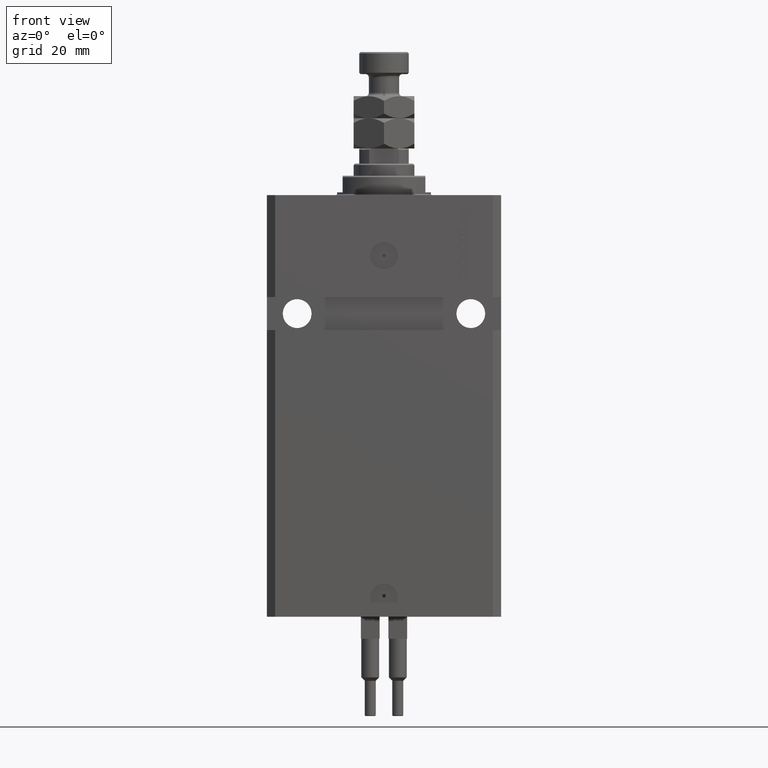
[diagram: clean part render]
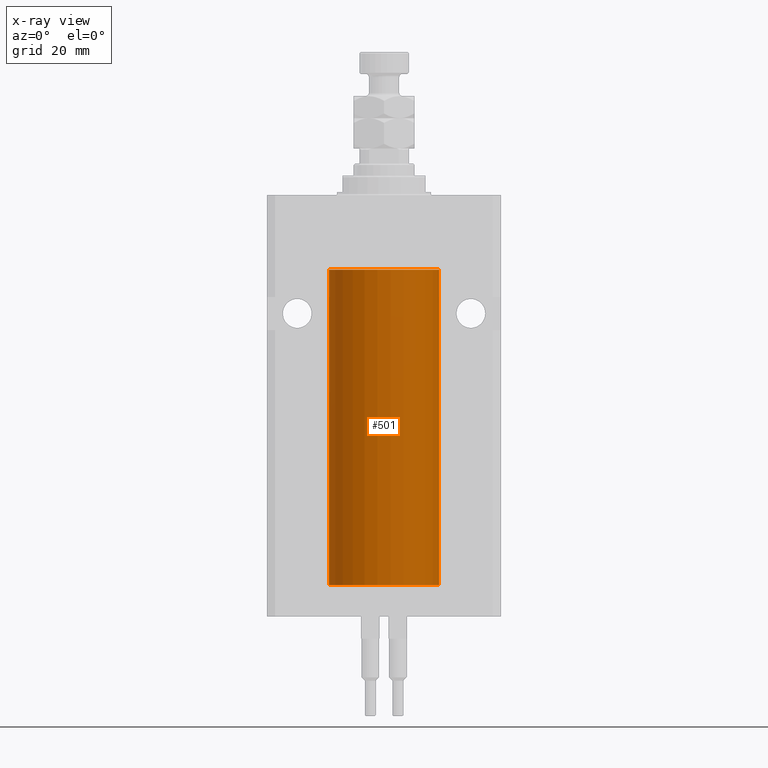
[diagram: x-ray — body ghosted, one internal face saturated and labeled with its STEP entity id]
A machine part, front view, then the same camera in x-ray: the body is ghosted and one INTERNAL B-rep face — a face not visible from any outside direction — is saturated and labeled: STEP entity #501.
In plain terms, the highlighted cylindrical surface (partial cylindrical patch) has radius 20 mm, axis along (0, 0, 1).
Its self-contained STEP definition (entity closure, byte-faithful):
#374 = LINE ( 'NONE', #47937, #23562 ) ;
#501 = ADVANCED_FACE ( 'NONE', ( #33197 ), #21171, .F. ) ;
#2279 = CARTESIAN_POINT ( 'NONE',  ( 20.00000000000010303, 3.555666311577537537E-13, -138.3749999999966178 ) ) ;
#3867 = CARTESIAN_POINT ( 'NONE',  ( -19.99023630310506761, -0.6248620367829762490, -139.1653813832952835 ) ) ;
#3879 = EDGE_CURVE ( 'NONE', #7828, #16044, #11965, .T. ) ;
#4490 = EDGE_CURVE ( 'NONE', #46079, #20677, #31478, .T. ) ;
#5301 = CARTESIAN_POINT ( 'NONE',  ( -20.00000000000010303, 3.580159249456421507E-13, -139.6250000000033253 ) ) ;
#5884 = CARTESIAN_POINT ( 'NONE',  ( 19.99023198964933812, -0.6250000000000911493, -138.8350317194948786 ) ) ;
#6098 = EDGE_CURVE ( 'NONE', #46079, #27651, #14694, .T. ) ;
#7828 = VERTEX_POINT ( 'NONE', #24118 ) ;
#7982 = CARTESIAN_POINT ( 'NONE',  ( -19.99022768983530440, -0.6251375268966052889, -138.8356630308821593 ) ) ;
#8874 = AXIS2_PLACEMENT_3D ( 'NONE', #16845, #32208, #48790 ) ;
#10773 = AXIS2_PLACEMENT_3D ( 'NONE', #28556, #43149, #36487 ) ;
#10786 = ORIENTED_EDGE ( 'NONE', *, *, #6098, .F. ) ;
#11955 = EDGE_CURVE ( 'NONE', #20677, #24640, #41182, .T. ) ;
#11965 = LINE ( 'NONE', #19649, #26848 ) ;
#12065 = VERTEX_POINT ( 'NONE', #46764 ) ;
#13037 = DIRECTION ( 'NONE',  ( 0.000000000000000000, 0.000000000000000000, 1.000000000000000000 ) ) ;
#13487 = EDGE_CURVE ( 'NONE', #12065, #46257, #46648, .T. ) ;
#13950 = CARTESIAN_POINT ( 'NONE',  ( 19.99766246719553209, -0.3267907458473790494, -139.5571608607968699 ) ) ;
#14470 = EDGE_CURVE ( 'NONE', #19106, #16044, #31203, .T. ) ;
#14662 = ORIENTED_EDGE ( 'NONE', *, *, #4490, .T. ) ;
#14694 = CIRCLE ( 'NONE', #48985, 20.00000000000000000 ) ;
#14933 = CARTESIAN_POINT ( 'NONE',  ( 20.00000000000000000, -2.179639976041341418E-15, -139.6249999999999716 ) ) ;
#15225 = ORIENTED_EDGE ( 'NONE', *, *, #3879, .F. ) ;
#15911 = CARTESIAN_POINT ( 'NONE',  ( -20.00000000000000000, -1.756252550797319649E-14, -138.3749999999999716 ) ) ;
#16044 = VERTEX_POINT ( 'NONE', #37393 ) ;
#16690 = LINE ( 'NONE', #44302, #22224 ) ;
#16768 = CARTESIAN_POINT ( 'NONE',  ( -20.00000000000000000, 2.449293598294706119E-15, -141.5999999999999943 ) ) ;
#16845 = CARTESIAN_POINT ( 'NONE',  ( 0.000000000000000000, 0.000000000000000000, -141.5999999999999943 ) ) ;
#17035 = CARTESIAN_POINT ( 'NONE',  ( 19.99256494106949944, -0.5573539455062642700, -139.3264613235960496 ) ) ;
#19106 = VERTEX_POINT ( 'NONE', #28006 ) ;
#19394 = EDGE_CURVE ( 'NONE', #24640, #19106, #16690, .T. ) ;
#19453 = DIRECTION ( 'NONE',  ( -0.000000000000000000, -0.000000000000000000, 1.000000000000000000 ) ) ;
#19649 = CARTESIAN_POINT ( 'NONE',  ( 20.00000000000000000, 0.000000000000000000, -141.5999999999999943 ) ) ;
#20677 = VERTEX_POINT ( 'NONE', #5301 ) ;
#20705 = DIRECTION ( 'NONE',  ( 1.000000000000000000, 0.000000000000000000, 0.000000000000000000 ) ) ;
#21171 = CYLINDRICAL_SURFACE ( 'NONE', #8874, 20.00000000000000000 ) ;
#21479 = CARTESIAN_POINT ( 'NONE',  ( 19.99023198964933812, -0.6250000000000839329, -138.9999999999999432 ) ) ;
#21727 = CARTESIAN_POINT ( 'NONE',  ( -20.00000000000000000, -1.756252550797319649E-14, -138.3749999999999716 ) ) ;
#22224 = VECTOR ( 'NONE', #31524, 1000.000000000000000 ) ;
#23405 = ORIENTED_EDGE ( 'NONE', *, *, #14470, .T. ) ;
#23562 = VECTOR ( 'NONE', #40029, 1000.000000000000000 ) ;
#24118 = CARTESIAN_POINT ( 'NONE',  ( 20.00000000000010303, 3.555666311577537537E-13, -138.3749999999966178 ) ) ;
#24542 = CARTESIAN_POINT ( 'NONE',  ( 0.000000000000000000, 0.000000000000000000, -141.5999999999999943 ) ) ;
#24640 = VERTEX_POINT ( 'NONE', #21727 ) ;
#25092 = ORIENTED_EDGE ( 'NONE', *, *, #19394, .T. ) ;
#25324 = CARTESIAN_POINT ( 'NONE',  ( 20.00000000000000000, -0.1632180151482494623, -138.3749999999997442 ) ) ;
#25952 = CARTESIAN_POINT ( 'NONE',  ( 19.99023198964933812, -0.6250000000000839329, -138.9999999999999432 ) ) ;
#26848 = VECTOR ( 'NONE', #43690, 1000.000000000000000 ) ;
#27153 = CARTESIAN_POINT ( 'NONE',  ( -19.99765984516761819, -0.3269569594424134862, -138.4429100894329565 ) ) ;
#27405 = CARTESIAN_POINT ( 'NONE',  ( -19.99767054355995555, -0.3263099029014814301, -139.5574110824076683 ) ) ;
#27651 = VERTEX_POINT ( 'NONE', #37414 ) ;
#28006 = CARTESIAN_POINT ( 'NONE',  ( -20.00000000000000000, 2.449293598294706119E-15, -27.10000000000000142 ) ) ;
#28556 = CARTESIAN_POINT ( 'NONE',  ( 0.000000000000000000, 0.000000000000000000, -27.10000000000000142 ) ) ;
#31203 = CIRCLE ( 'NONE', #10773, 20.00000000000000000 ) ;
#31478 = LINE ( 'NONE', #42735, #41580 ) ;
#31524 = DIRECTION ( 'NONE',  ( -0.000000000000000000, -0.000000000000000000, 1.000000000000000000 ) ) ;
#31890 = ORIENTED_EDGE ( 'NONE', *, *, #36448, .F. ) ;
#32208 = DIRECTION ( 'NONE',  ( -0.000000000000000000, -0.000000000000000000, 1.000000000000000000 ) ) ;
#32648 = CARTESIAN_POINT ( 'NONE',  ( 20.00000000000000000, -2.179639976041341418E-15, -139.6249999999999716 ) ) ;
#33197 = FACE_OUTER_BOUND ( 'NONE', #41346, .T. ) ;
#33358 = ORIENTED_EDGE ( 'NONE', *, *, #47691, .T. ) ;
#33508 = CARTESIAN_POINT ( 'NONE',  ( 19.99766790699043995, -0.3264769477312507995, -138.4426606383000262 ) ) ;
#35867 = CARTESIAN_POINT ( 'NONE',  ( -20.00000000000000355, -0.1631318982819167651, -139.6250000000001990 ) ) ;
#36448 = EDGE_CURVE ( 'NONE', #27651, #46257, #374, .T. ) ;
#36477 = CARTESIAN_POINT ( 'NONE',  ( 19.99023198964934167, -0.6250000000000767164, -139.1647941998272131 ) ) ;
#36487 = DIRECTION ( 'NONE',  ( 1.000000000000000000, 0.000000000000000000, 0.000000000000000000 ) ) ;
#36558 = ORIENTED_EDGE ( 'NONE', *, *, #11955, .T. ) ;
#37393 = CARTESIAN_POINT ( 'NONE',  ( 20.00000000000000000, 0.000000000000000000, -27.10000000000000142 ) ) ;
#37414 = CARTESIAN_POINT ( 'NONE',  ( 20.00000000000000000, 0.000000000000000000, -141.5999999999999943 ) ) ;
#37456 = ORIENTED_EDGE ( 'NONE', *, *, #13487, .T. ) ;
#39701 = CARTESIAN_POINT ( 'NONE',  ( -20.00000000000010303, 3.580159249456421507E-13, -139.6250000000033253 ) ) ;
#40029 = DIRECTION ( 'NONE',  ( -0.000000000000000000, -0.000000000000000000, 1.000000000000000000 ) ) ;
#40939 = CARTESIAN_POINT ( 'NONE',  ( 19.99257096259849931, -0.5571491910957772076, -138.6731986224609727 ) ) ;
#41182 = B_SPLINE_CURVE_WITH_KNOTS ( 'NONE', 3,
 ( #39701, #35867, #27405, #43025, #3867, #7982, #43283, #27153, #47370, #15911 ),
 .UNSPECIFIED., .F., .F.,
 ( 4, 2, 2, 2, 4 ),
 ( 0.001954154509844256704, 0.002442582466643830781, 0.002931010423443404424, 0.003419438380242978068, 0.003907866337042552145 ),
 .UNSPECIFIED. ) ;
#41346 = EDGE_LOOP ( 'NONE', ( #10786, #14662, #36558, #25092, #23405, #15225, #33358, #37456, #31890 ) ) ;
#41580 = VECTOR ( 'NONE', #19453, 1000.000000000000000 ) ;
#42735 = CARTESIAN_POINT ( 'NONE',  ( -20.00000000000000000, 2.449293598294706119E-15, -141.5999999999999943 ) ) ;
#43025 = CARTESIAN_POINT ( 'NONE',  ( -19.99257639367449357, -0.5569510432580332404, -139.3270944862516671 ) ) ;
#43149 = DIRECTION ( 'NONE',  ( 0.000000000000000000, 0.000000000000000000, 1.000000000000000000 ) ) ;
#43283 = CARTESIAN_POINT ( 'NONE',  ( -19.99255948581289033, -0.5575529953197854161, -138.6738333567126915 ) ) ;
#43690 = DIRECTION ( 'NONE',  ( -0.000000000000000000, -0.000000000000000000, 1.000000000000000000 ) ) ;
#44302 = CARTESIAN_POINT ( 'NONE',  ( -20.00000000000000000, 2.449293598294706119E-15, -141.5999999999999943 ) ) ;
#44569 = B_SPLINE_CURVE_WITH_KNOTS ( 'NONE', 3,
 ( #2279, #25324, #33508, #40939, #5884, #21479 ),
 .UNSPECIFIED., .F., .F.,
 ( 4, 2, 4 ),
 ( 0.001954154509844120095, 0.002442840306376502235, 0.002931526102908884376 ),
 .UNSPECIFIED. ) ;
#45152 = CARTESIAN_POINT ( 'NONE',  ( 20.00000000000000000, -0.1650670266421448706, -139.6250000000000000 ) ) ;
#46079 = VERTEX_POINT ( 'NONE', #16768 ) ;
#46257 = VERTEX_POINT ( 'NONE', #14933 ) ;
#46648 = B_SPLINE_CURVE_WITH_KNOTS ( 'NONE', 3,
 ( #25952, #36477, #17035, #13950, #45152, #32648 ),
 .UNSPECIFIED., .F., .F.,
 ( 4, 2, 4 ),
 ( 0.002931526102908884376, 0.003419696219975714574, 0.003907866337042544339 ),
 .UNSPECIFIED. ) ;
#46764 = CARTESIAN_POINT ( 'NONE',  ( 19.99023198964933812, -0.6250000000000839329, -138.9999999999999432 ) ) ;
#47370 = CARTESIAN_POINT ( 'NONE',  ( -20.00000000000000355, -0.1651542110816557607, -138.3749999999999716 ) ) ;
#47691 = EDGE_CURVE ( 'NONE', #7828, #12065, #44569, .T. ) ;
#47937 = CARTESIAN_POINT ( 'NONE',  ( 20.00000000000000000, 0.000000000000000000, -141.5999999999999943 ) ) ;
#48790 = DIRECTION ( 'NONE',  ( 1.000000000000000000, 0.000000000000000000, 0.000000000000000000 ) ) ;
#48985 = AXIS2_PLACEMENT_3D ( 'NONE', #24542, #13037, #20705 ) ;